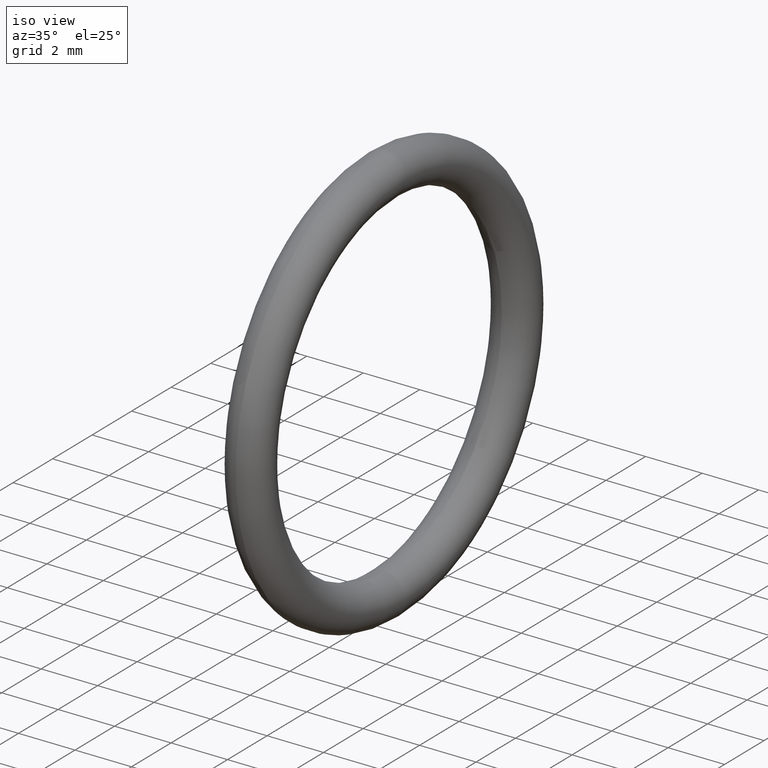
[diagram: clean part render]
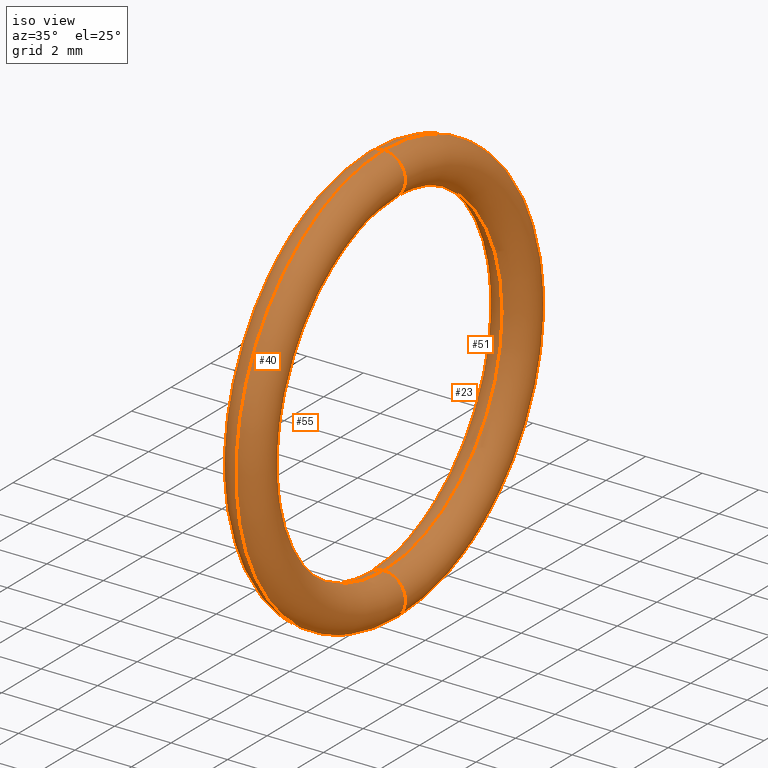
[diagram: same view with one multi-face feature highlighted, each face labeled with its STEP entity id]
A machine part, iso view. The highlighted faces form ONE feature: a constant-radius fillet chain: 4 tangent blend faces with common blend radius 0.762 mm. The faces share edges in the B-rep.
Their STEP definitions:
[1] entity #40 (Torus):
#1 = DIRECTION ( 'NONE',  ( 0.0000000000000000000, 0.0000000000000000000, 1.000000000000000000 ) ) ;
#2 = DIRECTION ( 'NONE',  ( -0.0000000000000000000, 1.000000000000000000, 1.224646799147353200E-016 ) ) ;
#3 = CARTESIAN_POINT ( 'NONE',  ( 0.1000000000000000500, 3.245314017740485600E-017, -0.2649999999999999600 ) ) ;
#4 = AXIS2_PLACEMENT_3D ( 'NONE', #3, #2, #11 ) ;
#11 = DIRECTION ( 'NONE',  ( 0.0000000000000000000, -1.224646799147353500E-016, 1.000000000000000000 ) ) ;
#12 = CARTESIAN_POINT ( 'NONE',  ( 0.1000000000000000500, 0.0000000000000000000, 0.0000000000000000000 ) ) ;
#13 = DIRECTION ( 'NONE',  ( -1.000000000000000000, -0.0000000000000000000, -0.0000000000000000000 ) ) ;
#14 = DIRECTION ( 'NONE',  ( 0.0000000000000000000, 0.0000000000000000000, 1.000000000000000000 ) ) ;
#15 = AXIS2_PLACEMENT_3D ( 'NONE', #12, #13, #14 ) ;
#16 = CIRCLE ( 'NONE', #15, 0.2349999999999999600 ) ;
#17 = CIRCLE ( 'NONE', #4, 0.03000000000000002300 ) ;
#18 = AXIS2_PLACEMENT_3D ( 'NONE', #20, #21, #1 ) ;
#19 = CIRCLE ( 'NONE', #18, 0.2949999999999999800 ) ;
#20 = CARTESIAN_POINT ( 'NONE',  ( 0.1000000000000000500, 0.0000000000000000000, 0.0000000000000000000 ) ) ;
#21 = DIRECTION ( 'NONE',  ( -1.000000000000000000, -0.0000000000000000000, -0.0000000000000000000 ) ) ;
#22 = EDGE_LOOP ( 'NONE', ( #27, #34, #32, #29 ) ) ;
#24 = EDGE_CURVE ( 'NONE', #36, #35, #16, .T. ) ;
#26 = EDGE_CURVE ( 'NONE', #33, #31, #19, .T. ) ;
#27 = ORIENTED_EDGE ( 'NONE', *, *, #28, .F. ) ;
#28 = EDGE_CURVE ( 'NONE', #33, #36, #17, .T. ) ;
#29 = ORIENTED_EDGE ( 'NONE', *, *, #24, .F. ) ;
#30 = EDGE_CURVE ( 'NONE', #31, #35, #66, .T. ) ;
#31 = VERTEX_POINT ( 'NONE', #68 ) ;
#32 = ORIENTED_EDGE ( 'NONE', *, *, #30, .T. ) ;
#33 = VERTEX_POINT ( 'NONE', #67 ) ;
#34 = ORIENTED_EDGE ( 'NONE', *, *, #26, .T. ) ;
#35 = VERTEX_POINT ( 'NONE', #76 ) ;
#36 = VERTEX_POINT ( 'NONE', #82 ) ;
#40 = ADVANCED_FACE ( 'NONE', ( #81 ), #84, .T. ) ;
#60 = CARTESIAN_POINT ( 'NONE',  ( 0.1000000000000000500, 0.0000000000000000000, 0.2649999999999999600 ) ) ;
#63 = DIRECTION ( 'NONE',  ( 0.0000000000000000000, 0.0000000000000000000, 1.000000000000000000 ) ) ;
#64 = DIRECTION ( 'NONE',  ( -1.000000000000000000, -0.0000000000000000000, -0.0000000000000000000 ) ) ;
#65 = CARTESIAN_POINT ( 'NONE',  ( 0.1000000000000000500, 0.0000000000000000000, 0.0000000000000000000 ) ) ;
#66 = CIRCLE ( 'NONE', #75, 0.03000000000000002300 ) ;
#67 = CARTESIAN_POINT ( 'NONE',  ( 0.1000000000000000500, 3.612708057484692000E-017, -0.2949999999999999800 ) ) ;
#68 = CARTESIAN_POINT ( 'NONE',  ( 0.1000000000000000500, 0.0000000000000000000, 0.2949999999999999800 ) ) ;
#69 = DIRECTION ( 'NONE',  ( 0.0000000000000000000, -1.000000000000000000, 0.0000000000000000000 ) ) ;
#75 = AXIS2_PLACEMENT_3D ( 'NONE', #60, #69, #77 ) ;
#76 = CARTESIAN_POINT ( 'NONE',  ( 0.1000000000000000500, 0.0000000000000000000, 0.2349999999999999600 ) ) ;
#77 = DIRECTION ( 'NONE',  ( 0.0000000000000000000, 0.0000000000000000000, -1.000000000000000000 ) ) ;
#81 = FACE_OUTER_BOUND ( 'NONE', #22, .T. ) ;
#82 = CARTESIAN_POINT ( 'NONE',  ( 0.1000000000000000500, 2.877919977996279200E-017, -0.2349999999999999600 ) ) ;
#83 = AXIS2_PLACEMENT_3D ( 'NONE', #65, #64, #63 ) ;
#84 = TOROIDAL_SURFACE ( 'NONE', #83, 0.2649999999999999600, 0.03000000000000000900 ) ;
[2] entity #55 (Torus):
#1 = DIRECTION ( 'NONE',  ( 0.0000000000000000000, 0.0000000000000000000, 1.000000000000000000 ) ) ;
#12 = CARTESIAN_POINT ( 'NONE',  ( 0.1000000000000000500, 0.0000000000000000000, 0.0000000000000000000 ) ) ;
#13 = DIRECTION ( 'NONE',  ( -1.000000000000000000, -0.0000000000000000000, -0.0000000000000000000 ) ) ;
#14 = DIRECTION ( 'NONE',  ( 0.0000000000000000000, 0.0000000000000000000, 1.000000000000000000 ) ) ;
#15 = AXIS2_PLACEMENT_3D ( 'NONE', #12, #13, #14 ) ;
#16 = CIRCLE ( 'NONE', #15, 0.2349999999999999600 ) ;
#18 = AXIS2_PLACEMENT_3D ( 'NONE', #20, #21, #1 ) ;
#19 = CIRCLE ( 'NONE', #18, 0.2949999999999999800 ) ;
#20 = CARTESIAN_POINT ( 'NONE',  ( 0.1000000000000000500, 0.0000000000000000000, 0.0000000000000000000 ) ) ;
#21 = DIRECTION ( 'NONE',  ( -1.000000000000000000, -0.0000000000000000000, -0.0000000000000000000 ) ) ;
#24 = EDGE_CURVE ( 'NONE', #36, #35, #16, .T. ) ;
#26 = EDGE_CURVE ( 'NONE', #33, #31, #19, .T. ) ;
#31 = VERTEX_POINT ( 'NONE', #68 ) ;
#33 = VERTEX_POINT ( 'NONE', #67 ) ;
#35 = VERTEX_POINT ( 'NONE', #76 ) ;
#36 = VERTEX_POINT ( 'NONE', #82 ) ;
#37 = EDGE_CURVE ( 'NONE', #35, #31, #80, .T. ) ;
#44 = ORIENTED_EDGE ( 'NONE', *, *, #46, .F. ) ;
#45 = ORIENTED_EDGE ( 'NONE', *, *, #26, .F. ) ;
#46 = EDGE_CURVE ( 'NONE', #36, #33, #71, .T. ) ;
#49 = ORIENTED_EDGE ( 'NONE', *, *, #24, .T. ) ;
#52 = ORIENTED_EDGE ( 'NONE', *, *, #37, .T. ) ;
#55 = ADVANCED_FACE ( 'NONE', ( #116 ), #110, .T. ) ;
#56 = EDGE_LOOP ( 'NONE', ( #45, #44, #49, #52 ) ) ;
#67 = CARTESIAN_POINT ( 'NONE',  ( 0.1000000000000000500, 3.612708057484692000E-017, -0.2949999999999999800 ) ) ;
#68 = CARTESIAN_POINT ( 'NONE',  ( 0.1000000000000000500, 0.0000000000000000000, 0.2949999999999999800 ) ) ;
#70 = AXIS2_PLACEMENT_3D ( 'NONE', #87, #88, #90 ) ;
#71 = CIRCLE ( 'NONE', #70, 0.03000000000000002300 ) ;
#76 = CARTESIAN_POINT ( 'NONE',  ( 0.1000000000000000500, 0.0000000000000000000, 0.2349999999999999600 ) ) ;
#78 = CARTESIAN_POINT ( 'NONE',  ( 0.1000000000000000500, 0.0000000000000000000, 0.2649999999999999600 ) ) ;
#79 = AXIS2_PLACEMENT_3D ( 'NONE', #78, #86, #85 ) ;
#80 = CIRCLE ( 'NONE', #79, 0.03000000000000002300 ) ;
#82 = CARTESIAN_POINT ( 'NONE',  ( 0.1000000000000000500, 2.877919977996279200E-017, -0.2349999999999999600 ) ) ;
#85 = DIRECTION ( 'NONE',  ( 0.0000000000000000000, 0.0000000000000000000, -1.000000000000000000 ) ) ;
#86 = DIRECTION ( 'NONE',  ( 0.0000000000000000000, -1.000000000000000000, 0.0000000000000000000 ) ) ;
#87 = CARTESIAN_POINT ( 'NONE',  ( 0.1000000000000000500, 3.245314017740485600E-017, -0.2649999999999999600 ) ) ;
#88 = DIRECTION ( 'NONE',  ( -0.0000000000000000000, 1.000000000000000000, 1.224646799147353200E-016 ) ) ;
#90 = DIRECTION ( 'NONE',  ( 0.0000000000000000000, -1.224646799147353500E-016, 1.000000000000000000 ) ) ;
#108 = AXIS2_PLACEMENT_3D ( 'NONE', #112, #111, #109 ) ;
#109 = DIRECTION ( 'NONE',  ( 0.0000000000000000000, 0.0000000000000000000, 1.000000000000000000 ) ) ;
#110 = TOROIDAL_SURFACE ( 'NONE', #108, 0.2649999999999999600, 0.03000000000000000900 ) ;
#111 = DIRECTION ( 'NONE',  ( -1.000000000000000000, -0.0000000000000000000, -0.0000000000000000000 ) ) ;
#112 = CARTESIAN_POINT ( 'NONE',  ( 0.1000000000000000500, 0.0000000000000000000, 0.0000000000000000000 ) ) ;
#116 = FACE_OUTER_BOUND ( 'NONE', #56, .T. ) ;
[3] entity #51 (Torus):
#31 = VERTEX_POINT ( 'NONE', #68 ) ;
#33 = VERTEX_POINT ( 'NONE', #67 ) ;
#35 = VERTEX_POINT ( 'NONE', #76 ) ;
#36 = VERTEX_POINT ( 'NONE', #82 ) ;
#37 = EDGE_CURVE ( 'NONE', #35, #31, #80, .T. ) ;
#38 = ORIENTED_EDGE ( 'NONE', *, *, #50, .T. ) ;
#43 = EDGE_CURVE ( 'NONE', #31, #33, #62, .T. ) ;
#46 = EDGE_CURVE ( 'NONE', #36, #33, #71, .T. ) ;
#47 = ORIENTED_EDGE ( 'NONE', *, *, #43, .F. ) ;
#48 = ORIENTED_EDGE ( 'NONE', *, *, #37, .F. ) ;
#50 = EDGE_CURVE ( 'NONE', #35, #36, #93, .T. ) ;
#51 = ADVANCED_FACE ( 'NONE', ( #97 ), #101, .T. ) ;
#58 = EDGE_LOOP ( 'NONE', ( #47, #48, #38, #59 ) ) ;
#59 = ORIENTED_EDGE ( 'NONE', *, *, #46, .T. ) ;
#61 = AXIS2_PLACEMENT_3D ( 'NONE', #74, #73, #72 ) ;
#62 = CIRCLE ( 'NONE', #61, 0.2949999999999999800 ) ;
#67 = CARTESIAN_POINT ( 'NONE',  ( 0.1000000000000000500, 3.612708057484692000E-017, -0.2949999999999999800 ) ) ;
#68 = CARTESIAN_POINT ( 'NONE',  ( 0.1000000000000000500, 0.0000000000000000000, 0.2949999999999999800 ) ) ;
#70 = AXIS2_PLACEMENT_3D ( 'NONE', #87, #88, #90 ) ;
#71 = CIRCLE ( 'NONE', #70, 0.03000000000000002300 ) ;
#72 = DIRECTION ( 'NONE',  ( 0.0000000000000000000, 0.0000000000000000000, 1.000000000000000000 ) ) ;
#73 = DIRECTION ( 'NONE',  ( -1.000000000000000000, -0.0000000000000000000, -0.0000000000000000000 ) ) ;
#74 = CARTESIAN_POINT ( 'NONE',  ( 0.1000000000000000500, 0.0000000000000000000, 0.0000000000000000000 ) ) ;
#76 = CARTESIAN_POINT ( 'NONE',  ( 0.1000000000000000500, 0.0000000000000000000, 0.2349999999999999600 ) ) ;
#78 = CARTESIAN_POINT ( 'NONE',  ( 0.1000000000000000500, 0.0000000000000000000, 0.2649999999999999600 ) ) ;
#79 = AXIS2_PLACEMENT_3D ( 'NONE', #78, #86, #85 ) ;
#80 = CIRCLE ( 'NONE', #79, 0.03000000000000002300 ) ;
#82 = CARTESIAN_POINT ( 'NONE',  ( 0.1000000000000000500, 2.877919977996279200E-017, -0.2349999999999999600 ) ) ;
#85 = DIRECTION ( 'NONE',  ( 0.0000000000000000000, 0.0000000000000000000, -1.000000000000000000 ) ) ;
#86 = DIRECTION ( 'NONE',  ( 0.0000000000000000000, -1.000000000000000000, 0.0000000000000000000 ) ) ;
#87 = CARTESIAN_POINT ( 'NONE',  ( 0.1000000000000000500, 3.245314017740485600E-017, -0.2649999999999999600 ) ) ;
#88 = DIRECTION ( 'NONE',  ( -0.0000000000000000000, 1.000000000000000000, 1.224646799147353200E-016 ) ) ;
#90 = DIRECTION ( 'NONE',  ( 0.0000000000000000000, -1.224646799147353500E-016, 1.000000000000000000 ) ) ;
#92 = AXIS2_PLACEMENT_3D ( 'NONE', #96, #95, #94 ) ;
#93 = CIRCLE ( 'NONE', #92, 0.2349999999999999600 ) ;
#94 = DIRECTION ( 'NONE',  ( 0.0000000000000000000, 0.0000000000000000000, 1.000000000000000000 ) ) ;
#95 = DIRECTION ( 'NONE',  ( -1.000000000000000000, -0.0000000000000000000, -0.0000000000000000000 ) ) ;
#96 = CARTESIAN_POINT ( 'NONE',  ( 0.1000000000000000500, 0.0000000000000000000, 0.0000000000000000000 ) ) ;
#97 = FACE_OUTER_BOUND ( 'NONE', #58, .T. ) ;
#98 = AXIS2_PLACEMENT_3D ( 'NONE', #103, #99, #102 ) ;
#99 = DIRECTION ( 'NONE',  ( -1.000000000000000000, -0.0000000000000000000, -0.0000000000000000000 ) ) ;
#101 = TOROIDAL_SURFACE ( 'NONE', #98, 0.2649999999999999600, 0.03000000000000000900 ) ;
#102 = DIRECTION ( 'NONE',  ( 0.0000000000000000000, 0.0000000000000000000, 1.000000000000000000 ) ) ;
#103 = CARTESIAN_POINT ( 'NONE',  ( 0.1000000000000000500, 0.0000000000000000000, 0.0000000000000000000 ) ) ;
[4] entity #23 (Torus):
#2 = DIRECTION ( 'NONE',  ( -0.0000000000000000000, 1.000000000000000000, 1.224646799147353200E-016 ) ) ;
#3 = CARTESIAN_POINT ( 'NONE',  ( 0.1000000000000000500, 3.245314017740485600E-017, -0.2649999999999999600 ) ) ;
#4 = AXIS2_PLACEMENT_3D ( 'NONE', #3, #2, #11 ) ;
#5 = DIRECTION ( 'NONE',  ( -1.000000000000000000, -0.0000000000000000000, -0.0000000000000000000 ) ) ;
#6 = TOROIDAL_SURFACE ( 'NONE', #10, 0.2649999999999999600, 0.03000000000000000900 ) ;
#7 = DIRECTION ( 'NONE',  ( 0.0000000000000000000, 0.0000000000000000000, 1.000000000000000000 ) ) ;
#8 = FACE_OUTER_BOUND ( 'NONE', #25, .T. ) ;
#9 = CARTESIAN_POINT ( 'NONE',  ( 0.1000000000000000500, 0.0000000000000000000, 0.0000000000000000000 ) ) ;
#10 = AXIS2_PLACEMENT_3D ( 'NONE', #9, #5, #7 ) ;
#11 = DIRECTION ( 'NONE',  ( 0.0000000000000000000, -1.224646799147353500E-016, 1.000000000000000000 ) ) ;
#17 = CIRCLE ( 'NONE', #4, 0.03000000000000002300 ) ;
#23 = ADVANCED_FACE ( 'NONE', ( #8 ), #6, .T. ) ;
#25 = EDGE_LOOP ( 'NONE', ( #41, #42, #53, #54 ) ) ;
#28 = EDGE_CURVE ( 'NONE', #33, #36, #17, .T. ) ;
#30 = EDGE_CURVE ( 'NONE', #31, #35, #66, .T. ) ;
#31 = VERTEX_POINT ( 'NONE', #68 ) ;
#33 = VERTEX_POINT ( 'NONE', #67 ) ;
#35 = VERTEX_POINT ( 'NONE', #76 ) ;
#36 = VERTEX_POINT ( 'NONE', #82 ) ;
#41 = ORIENTED_EDGE ( 'NONE', *, *, #30, .F. ) ;
#42 = ORIENTED_EDGE ( 'NONE', *, *, #43, .T. ) ;
#43 = EDGE_CURVE ( 'NONE', #31, #33, #62, .T. ) ;
#50 = EDGE_CURVE ( 'NONE', #35, #36, #93, .T. ) ;
#53 = ORIENTED_EDGE ( 'NONE', *, *, #28, .T. ) ;
#54 = ORIENTED_EDGE ( 'NONE', *, *, #50, .F. ) ;
#60 = CARTESIAN_POINT ( 'NONE',  ( 0.1000000000000000500, 0.0000000000000000000, 0.2649999999999999600 ) ) ;
#61 = AXIS2_PLACEMENT_3D ( 'NONE', #74, #73, #72 ) ;
#62 = CIRCLE ( 'NONE', #61, 0.2949999999999999800 ) ;
#66 = CIRCLE ( 'NONE', #75, 0.03000000000000002300 ) ;
#67 = CARTESIAN_POINT ( 'NONE',  ( 0.1000000000000000500, 3.612708057484692000E-017, -0.2949999999999999800 ) ) ;
#68 = CARTESIAN_POINT ( 'NONE',  ( 0.1000000000000000500, 0.0000000000000000000, 0.2949999999999999800 ) ) ;
#69 = DIRECTION ( 'NONE',  ( 0.0000000000000000000, -1.000000000000000000, 0.0000000000000000000 ) ) ;
#72 = DIRECTION ( 'NONE',  ( 0.0000000000000000000, 0.0000000000000000000, 1.000000000000000000 ) ) ;
#73 = DIRECTION ( 'NONE',  ( -1.000000000000000000, -0.0000000000000000000, -0.0000000000000000000 ) ) ;
#74 = CARTESIAN_POINT ( 'NONE',  ( 0.1000000000000000500, 0.0000000000000000000, 0.0000000000000000000 ) ) ;
#75 = AXIS2_PLACEMENT_3D ( 'NONE', #60, #69, #77 ) ;
#76 = CARTESIAN_POINT ( 'NONE',  ( 0.1000000000000000500, 0.0000000000000000000, 0.2349999999999999600 ) ) ;
#77 = DIRECTION ( 'NONE',  ( 0.0000000000000000000, 0.0000000000000000000, -1.000000000000000000 ) ) ;
#82 = CARTESIAN_POINT ( 'NONE',  ( 0.1000000000000000500, 2.877919977996279200E-017, -0.2349999999999999600 ) ) ;
#92 = AXIS2_PLACEMENT_3D ( 'NONE', #96, #95, #94 ) ;
#93 = CIRCLE ( 'NONE', #92, 0.2349999999999999600 ) ;
#94 = DIRECTION ( 'NONE',  ( 0.0000000000000000000, 0.0000000000000000000, 1.000000000000000000 ) ) ;
#95 = DIRECTION ( 'NONE',  ( -1.000000000000000000, -0.0000000000000000000, -0.0000000000000000000 ) ) ;
#96 = CARTESIAN_POINT ( 'NONE',  ( 0.1000000000000000500, 0.0000000000000000000, 0.0000000000000000000 ) ) ;